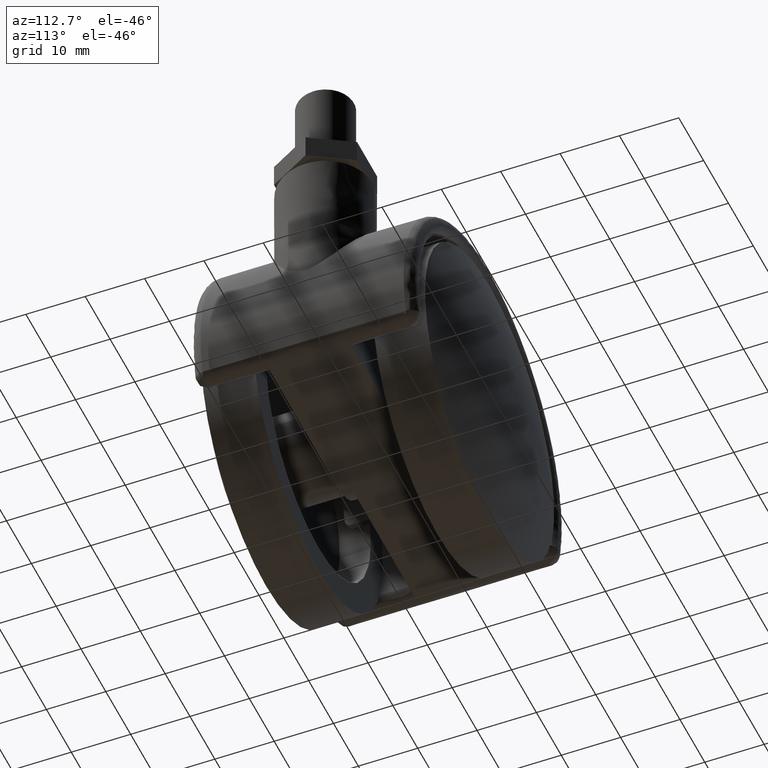
[diagram: clean part render]
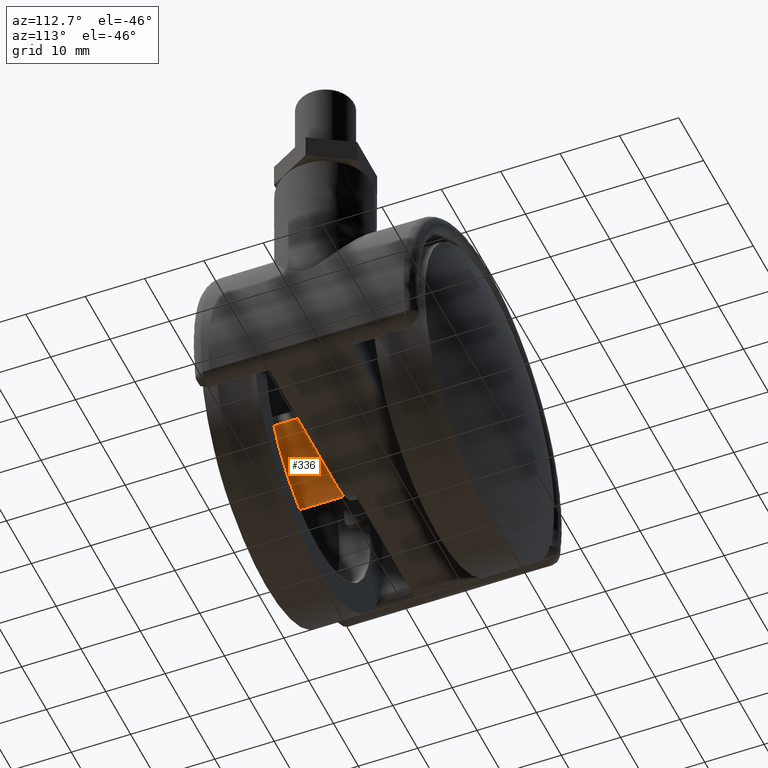
[diagram: same view with one face highlighted and labeled with its STEP entity id]
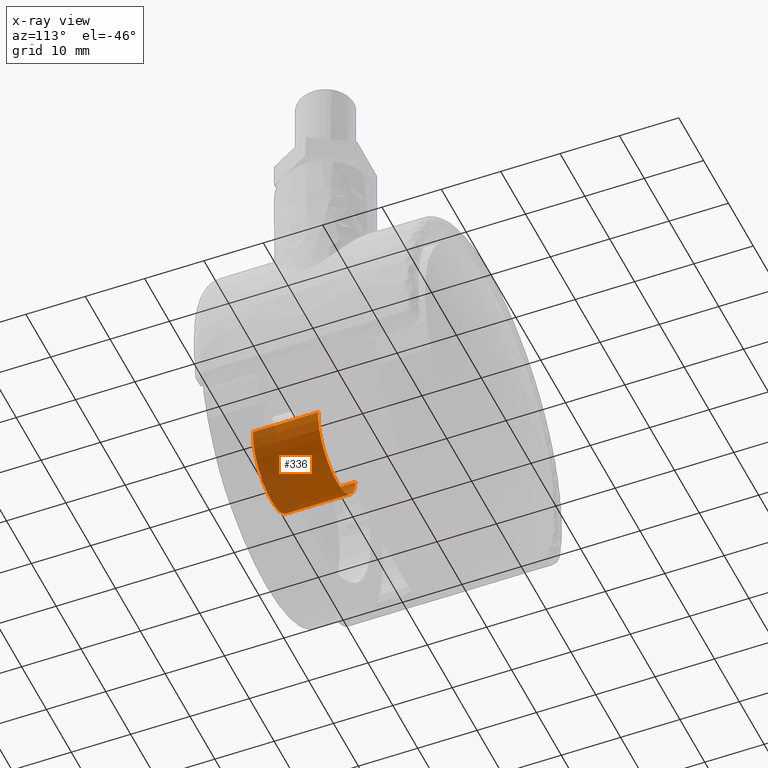
[diagram: x-ray of the same camera — body ghosted, the highlighted face saturated]
A machine part, auxiliary view. The second image highlights one B-rep face of the part: STEP entity #336.
The next image is the same camera in x-ray: the body ghosted, the highlighted face saturated — about 35% of this face is hidden behind the body in this view.
In plain terms, the highlighted face is a freeform B-spline surface patch.
Its self-contained STEP definition (entity closure, byte-faithful):
#234=CARTESIAN_POINT('',(7.447571447727496,-18.143271586682147,0.885256759925689));
#235=CARTESIAN_POINT('',(7.472907115864541,-18.143271586682140,0.672110464784833));
#236=CARTESIAN_POINT('',(7.486010988164000,-18.143271586682140,0.457864046511427));
#237=CARTESIAN_POINT('',(7.943875034675429,-18.143271586682150,-7.028146941652573));
#238=CARTESIAN_POINT('',(0.457864046511427,-18.143271586682140,-7.486010988164000));
#239=CARTESIAN_POINT('',(-7.028146941652573,-18.143271586682150,-7.943875034675429));
#240=CARTESIAN_POINT('',(-7.486010988164000,-18.143271586682140,-0.457864046511427));
#241=CARTESIAN_POINT('',(7.447571447727496,-6.618918210332945,0.885256759925689));
#242=CARTESIAN_POINT('',(7.472907115864541,-6.618918210332945,0.672110464784833));
#243=CARTESIAN_POINT('',(7.486010988164000,-6.618918210332945,0.457864046511427));
#244=CARTESIAN_POINT('',(7.943875034675429,-6.618918210332945,-7.028146941652573));
#245=CARTESIAN_POINT('',(0.457864046511427,-6.618918210332945,-7.486010988164000));
#246=CARTESIAN_POINT('',(-7.028146941652573,-6.618918210332945,-7.943875034675429));
#247=CARTESIAN_POINT('',(-7.486010988164000,-6.618918210332945,-0.457864046511427));
#255=(BOUNDED_SURFACE()B_SPLINE_SURFACE(2,1,((#234,#241),(#235,#242),(#236,#243),(#237,#244),(#238,#245),(#239,#246),(#240,#247)),.UNSPECIFIED.,.F.,.F.,.U.)B_SPLINE_SURFACE_WITH_KNOTS((3,2,2,3),(2,2),(0.0,0.497056274847715,12.923463146040559,25.349870017233410),(0.0,11.524353376349200),.UNSPECIFIED.)GEOMETRIC_REPRESENTATION_ITEM()RATIONAL_B_SPLINE_SURFACE(((0.977505800795127,0.977505800795127),(0.988284271247462,0.988284271247462),(1.0,1.0),(0.707106781186548,0.707106781186548),(1.0,1.0),(0.707106781186548,0.707106781186548),(1.0,1.0)))REPRESENTATION_ITEM('')SURFACE());
#256=CARTESIAN_POINT('',(7.447571447717403,-17.869045450421599,0.885256760010619));
#257=VERTEX_POINT('',#256);
#258=CARTESIAN_POINT('',(0.0,-17.869045450421599,-7.500000000000000));
#259=VERTEX_POINT('',#258);
#260=CARTESIAN_POINT('',(7.447571447717403,-17.869045450421602,0.885256760010619));
#261=CARTESIAN_POINT('',(7.500000000000000,-17.869045450421602,0.444180897475153));
#262=CARTESIAN_POINT('',(7.500000000000000,-17.869045450421599,0.0));
#263=CARTESIAN_POINT('',(7.500000000000000,-17.869045450421602,-7.500000000000000));
#264=CARTESIAN_POINT('',(0.0,-17.869045450421599,-7.500000000000000));
#272=(BOUNDED_CURVE()B_SPLINE_CURVE(2,(#260,#261,#262,#263,#264),.UNSPECIFIED.,.F.,.U.)B_SPLINE_CURVE_WITH_KNOTS((3,2,3),(0.229562473511790,0.250000000000000,0.500000000000000),.UNSPECIFIED.)CURVE()GEOMETRIC_REPRESENTATION_ITEM()RATIONAL_B_SPLINE_CURVE((0.956026754180331,0.976055948329132,1.0,0.707106781186547,1.0))REPRESENTATION_ITEM(''));
#273=EDGE_CURVE('',#257,#259,#272,.T.);
#274=ORIENTED_EDGE('',*,*,#273,.T.);
#275=CARTESIAN_POINT('',(-7.486011044637598,-17.869045450421599,-0.457863123174404));
#276=VERTEX_POINT('',#275);
#277=CARTESIAN_POINT('',(0.0,-17.869045450421599,-7.500000000000000));
#278=CARTESIAN_POINT('',(-7.055297245468959,-17.869045450421595,-7.500000000000001));
#279=CARTESIAN_POINT('',(-7.486011044637598,-17.869045450421599,-0.457863123174405));
#287=(BOUNDED_CURVE()B_SPLINE_CURVE(2,(#277,#278,#279),.UNSPECIFIED.,.F.,.U.)B_SPLINE_CURVE_WITH_KNOTS((3,3),(0.500000000000000,0.739333004806386),.UNSPECIFIED.)CURVE()GEOMETRIC_REPRESENTATION_ITEM()RATIONAL_B_SPLINE_CURVE((1.0,0.719603943415849,0.976072132896868))REPRESENTATION_ITEM(''));
#288=EDGE_CURVE('',#259,#276,#287,.T.);
#289=ORIENTED_EDGE('',*,*,#288,.T.);
#290=CARTESIAN_POINT('',(-7.486011043958739,-6.899999999999998,-0.457863134273688));
#291=VERTEX_POINT('',#290);
#292=CARTESIAN_POINT('',(-7.486011044637598,-17.869045450421599,-0.457863123174404));
#293=CARTESIAN_POINT('',(-7.486011043958739,-6.899999999999998,-0.457863134273688));
#294=QUASI_UNIFORM_CURVE('',1,(#292,#293),.UNSPECIFIED.,.F.,.U.);
#295=EDGE_CURVE('',#276,#291,#294,.T.);
#296=ORIENTED_EDGE('',*,*,#295,.T.);
#297=CARTESIAN_POINT('',(0.0,-6.900000000000000,-7.500000000000000));
#298=VERTEX_POINT('',#297);
#299=CARTESIAN_POINT('',(0.0,-6.900000000000000,-7.500000000000000));
#300=CARTESIAN_POINT('',(-7.055297224508431,-6.900000000000000,-7.499999999999999));
#301=CARTESIAN_POINT('',(-7.486011043958739,-6.899999999999999,-0.457863134273688));
#309=(BOUNDED_CURVE()B_SPLINE_CURVE(2,(#299,#300,#301),.UNSPECIFIED.,.F.,.U.)B_SPLINE_CURVE_WITH_KNOTS((3,3),(0.500000000000000,0.739333004294724),.UNSPECIFIED.)CURVE()GEOMETRIC_REPRESENTATION_ITEM()RATIONAL_B_SPLINE_CURVE((1.0,0.719603944015298,0.976072131800279))REPRESENTATION_ITEM(''));
#310=EDGE_CURVE('',#298,#291,#309,.T.);
#311=ORIENTED_EDGE('',*,*,#310,.F.);
#312=CARTESIAN_POINT('',(7.447571447717403,-6.900000000000000,0.885256760010619));
#313=VERTEX_POINT('',#312);
#314=CARTESIAN_POINT('',(7.447571447717403,-6.900000000000000,0.885256760010619));
#315=CARTESIAN_POINT('',(7.500000000000000,-6.900000000000000,0.444180897475153));
#316=CARTESIAN_POINT('',(7.500000000000000,-6.900000000000000,0.0));
#317=CARTESIAN_POINT('',(7.500000000000000,-6.900000000000000,-7.500000000000000));
#318=CARTESIAN_POINT('',(0.0,-6.900000000000000,-7.500000000000000));
#326=(BOUNDED_CURVE()B_SPLINE_CURVE(2,(#314,#315,#316,#317,#318),.UNSPECIFIED.,.F.,.U.)B_SPLINE_CURVE_WITH_KNOTS((3,2,3),(0.229562473511790,0.250000000000000,0.500000000000000),.UNSPECIFIED.)CURVE()GEOMETRIC_REPRESENTATION_ITEM()RATIONAL_B_SPLINE_CURVE((0.956026754180331,0.976055948329132,1.0,0.707106781186547,1.0))REPRESENTATION_ITEM(''));
#327=EDGE_CURVE('',#313,#298,#326,.T.);
#328=ORIENTED_EDGE('',*,*,#327,.F.);
#329=CARTESIAN_POINT('',(7.447571447717403,-17.869045450421599,0.885256760010619));
#330=CARTESIAN_POINT('',(7.447571447717403,-6.900000000000000,0.885256760010619));
#331=QUASI_UNIFORM_CURVE('',1,(#329,#330),.UNSPECIFIED.,.F.,.U.);
#332=EDGE_CURVE('',#257,#313,#331,.T.);
#333=ORIENTED_EDGE('',*,*,#332,.F.);
#334=EDGE_LOOP('',(#274,#289,#296,#311,#328,#333));
#335=FACE_OUTER_BOUND('',#334,.T.);
#336=ADVANCED_FACE('',(#335),#255,.T.);